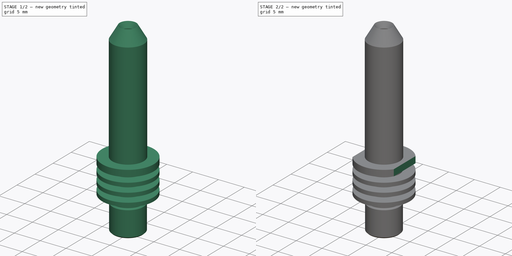
[diagram: build sequence overview — one tinted view per stage of 2, left to right]
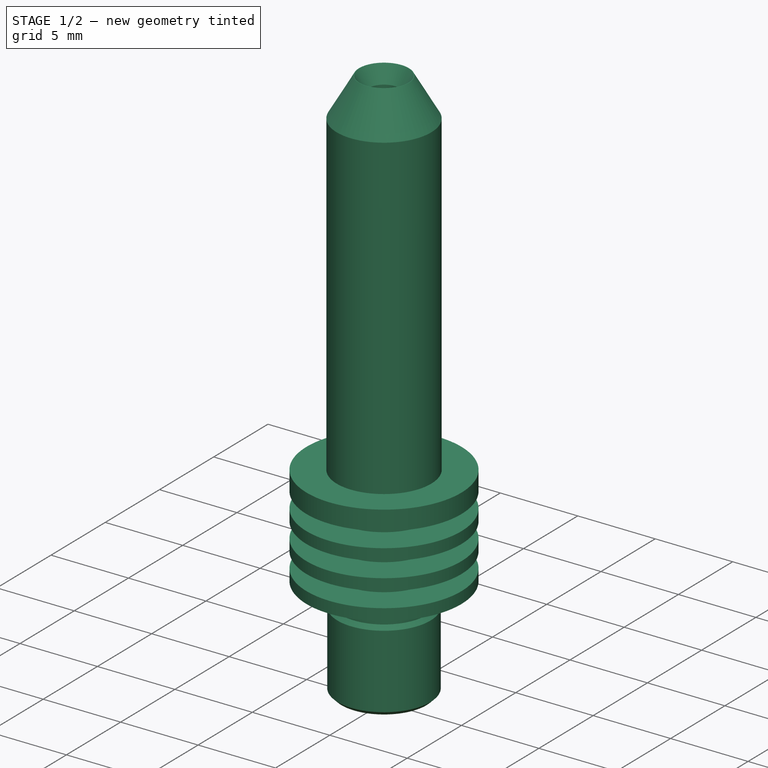
[diagram: stage 1 of 2 — iso view after this stage's code; geometry added in this stage tinted green]
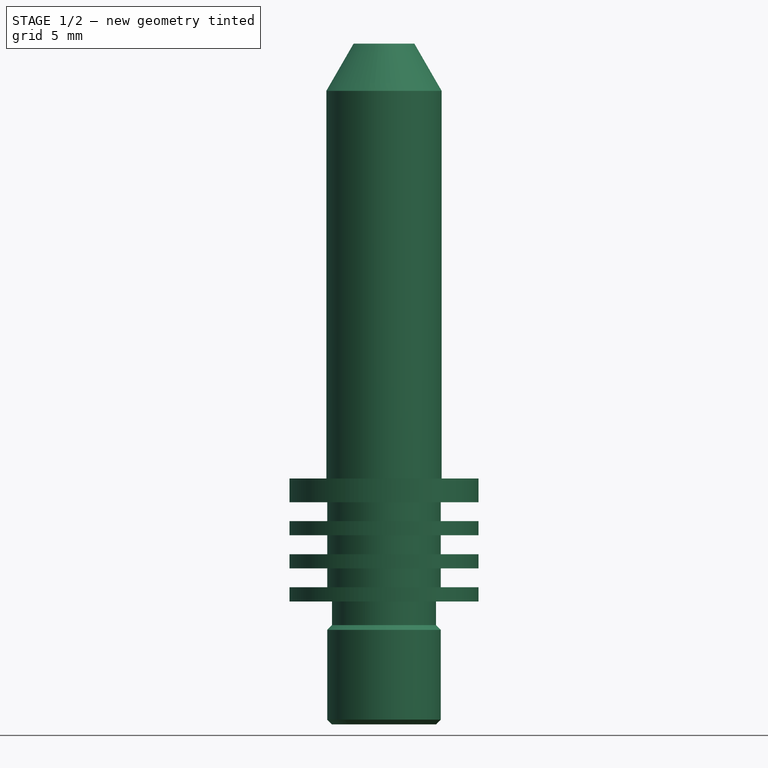
[diagram: stage 1 of 2 — front view after this stage's code; geometry added in this stage tinted green]
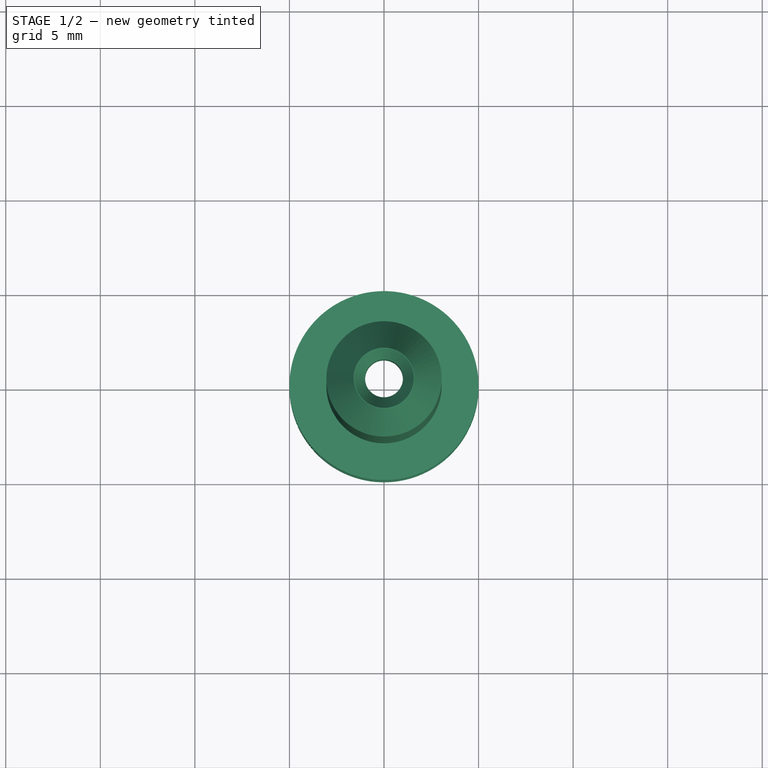
[diagram: stage 1 of 2 — top view after this stage's code; geometry added in this stage tinted green]
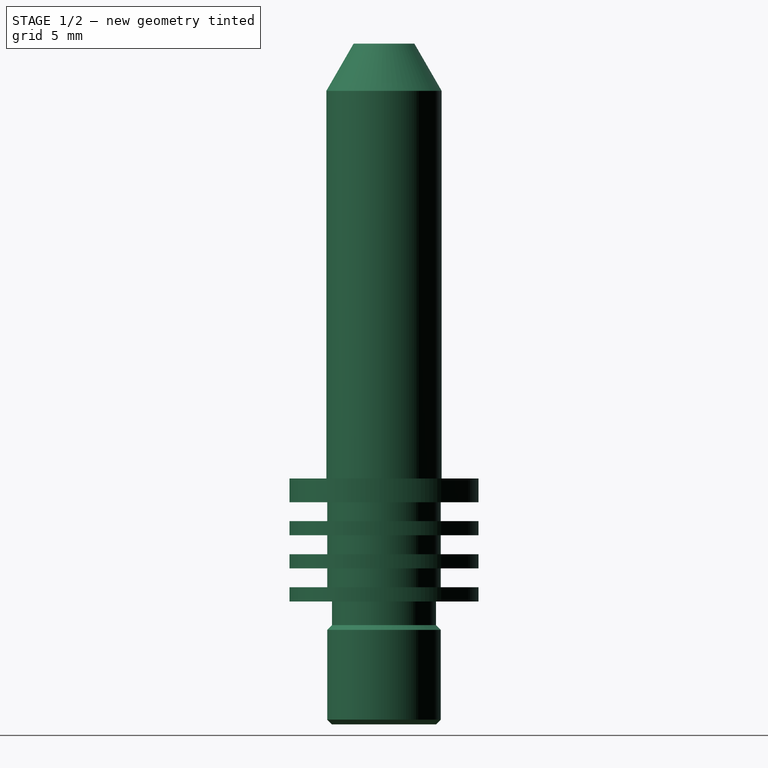
[diagram: stage 1 of 2 — right view after this stage's code; geometry added in this stage tinted green]
FCSTD DOCUMENT  (FreeCAD 0.14R3702 (Git))
Label: Hotend-main-tube
License: CC-BY 3.0
LicenseURL: http://creativecommons.org/licenses/by/3.0/
objects: Sketcher::SketchObject×2, PartDesign::Revolution×1, PartDesign::Pocket×1, Part::Feature×1
note: 7 computed .brp shape members not serialized (recipe doc carries the construction recipe); baked Part::Feature solids carry a one-line shape summary decoded from their .brp

FEATURE [Sketcher::SketchObject] Sketch  label="main-body-sketch"
  Placement = pos=(0,0,0) rot=(1,0,0;1.5708rad)
  sketch-geometry (31):
    g0: LineSegment StartX=-2 StartY=0 StartZ=0 EndX=-2 EndY=31 EndZ=0
    g1: LineSegment StartX=-2 StartY=31 StartZ=0 EndX=-1 EndY=31.5774 EndZ=0
    g2: LineSegment StartX=-1 StartY=31.5774 StartZ=0 EndX=-1 EndY=35 EndZ=0
    g3: LineSegment StartX=-1 StartY=35 StartZ=0 EndX=-1.57735 EndY=36 EndZ=0
    g4: LineSegment StartX=-3.05 StartY=33.4999 StartZ=0 EndX=-3.05 EndY=13 EndZ=0
    g5: LineSegment StartX=-3.05 StartY=13 StartZ=0 EndX=-5 EndY=13 EndZ=0
    g6: LineSegment StartX=-5 StartY=13 StartZ=0 EndX=-5 EndY=11.75 EndZ=0
    g7: LineSegment StartX=-5 StartY=11.75 StartZ=0 EndX=-3 EndY=11.75 EndZ=0
    g8: LineSegment StartX=-3 StartY=11.75 StartZ=0 EndX=-3 EndY=10.75 EndZ=0
    g9: LineSegment StartX=-3 StartY=10.75 StartZ=0 EndX=-5 EndY=10.75 EndZ=0
    g10: LineSegment StartX=-5 StartY=10.75 StartZ=0 EndX=-5 EndY=10 EndZ=0
    g11: LineSegment StartX=-5 StartY=10 StartZ=0 EndX=-3 EndY=10 EndZ=0
    g12: LineSegment StartX=-3 StartY=10 StartZ=0 EndX=-3 EndY=9 EndZ=0
    g13: LineSegment StartX=-3 StartY=9 StartZ=0 EndX=-5 EndY=9 EndZ=0
    g14: LineSegment StartX=-5 StartY=9 StartZ=0 EndX=-5 EndY=8.25 EndZ=0
    g15: LineSegment StartX=-5 StartY=8.25 StartZ=0 EndX=-3 EndY=8.25 EndZ=0
    g16: LineSegment StartX=-3 StartY=8.25 StartZ=0 EndX=-3 EndY=7.25 EndZ=0
    g17: LineSegment StartX=-3 StartY=7.25 StartZ=0 EndX=-5 EndY=7.25 EndZ=0
    g18: LineSegment StartX=-5 StartY=7.25 StartZ=0 EndX=-5 EndY=6.5 EndZ=0
    g19: LineSegment StartX=-5 StartY=6.5 StartZ=0 EndX=-2.75 EndY=6.5 EndZ=0
    g20: LineSegment StartX=-2.75 StartY=6.5 StartZ=0 EndX=-2.75 EndY=5.25 EndZ=0
    g21: LineSegment StartX=-2.75 StartY=5.25 StartZ=0 EndX=-3 EndY=5 EndZ=0
    g22: LineSegment StartX=-3 StartY=5 StartZ=0 EndX=-3 EndY=0.25 EndZ=0
    g23: LineSegment StartX=-3 StartY=0.25 StartZ=0 EndX=-2.75 EndY=0 EndZ=0
    g24: LineSegment StartX=-2.75 StartY=0 StartZ=0 EndX=-2 EndY=0 EndZ=0
    g25: LineSegment [constr] StartX=-2 StartY=31 StartZ=0 EndX=0 EndY=31 EndZ=0
    g26: LineSegment [constr] StartX=-1 StartY=35 StartZ=0 EndX=-2 EndY=35 EndZ=0
    g27: LineSegment StartX=-1.60655 StartY=36 StartZ=0 EndX=-1.57735 EndY=36 EndZ=0
    g28: LineSegment StartX=-1.60655 StartY=36 StartZ=0 EndX=-3.05 EndY=33.4999 EndZ=0
    g29: LineSegment [constr] StartX=-3 StartY=5 StartZ=0 EndX=-2 EndY=5 EndZ=0
    g30: LineSegment [constr] StartX=-3.05 StartY=33.4999 StartZ=0 EndX=-2.05 EndY=33.4999 EndZ=0
  constraints (93):
    c: Coincident(g0,g1)
    c: Coincident(g1,g2)
    c: Coincident(g2,g3)
    c: Coincident(g4,g5)
    c: Coincident(g5,g6)
    c: Coincident(g6,g7)
    c: Coincident(g7,g8)
    c: Coincident(g8,g9)
    c: Coincident(g9,g10)
    c: Coincident(g10,g11)
    c: Horizontal(g11)
    c: Coincident(g11,g12)
    c: Coincident(g12,g13)
    c: Horizontal(g13)
    c: Coincident(g13,g14)
    c: Coincident(g14,g15)
    c: Horizontal(g15)
    c: Coincident(g15,g16)
    c: Vertical(g16)
    c: Coincident(g16,g17)
    c: Horizontal(g17)
    c: Coincident(g17,g18)
    c: Vertical(g18)
    c: Coincident(g18,g19)
    c: Horizontal(g19)
    c: Coincident(g19,g20)
    c: Coincident(g20,g21)
    c: Coincident(g21,g22)
    c: Vertical(g22)
    c: Coincident(g22,g23)
    c: Coincident(g23,g24)
    c: Coincident(g24,g0)
    c: Horizontal(g24)
    c: PointOnObject(g23,g-1)
    c: Vertical(g0)
    c: DistanceX(g-1,g0) = -2
    c: DistanceX(g-1,g23) = -2.75
    c: DistanceX(g-1,g22) = -3
    c: Angle(g-1,g23) = 2.35619
    c: DistanceY(g0) = 31
    c: Horizontal(g25)
    c: Coincident(g25,g0)
    c: DistanceX(g25) = 2
    c: Angle(g25,g1) = 0.523599
    c: DistanceX(g25,g1) = -1
    c: Vertical(g2)
    c: DistanceY(g2,g3) = 1
    c: DistanceY(g-1,g3) = 36
    c: Horizontal(g26)
    c: Coincident(g26,g2)
    c: DistanceX(g26) = -1
    c: Angle(g3,g26) = 1.0472
    c: Horizontal(g27)
    c: Coincident(g27,g3)
    c: DistanceX(g27) = 0.0292
    c: Coincident(g27,g28)
    c: Coincident(g28,g4)
    c: Vertical(g4)
    c: DistanceX(g-1,g4) = -3.05
    c: Horizontal(g5)
    c: Vertical(g6)
    c: Horizontal(g7)
    c: Vertical(g8)
    c: Horizontal(g9)
    c: Vertical(g10)
    c: Vertical(g12)
    c: Vertical(g14)
    c: Vertical(g20)
    c: DistanceY(g22) = -4.75
    c: Horizontal(g29)
    c: Coincident(g29,g21)
    c: DistanceX(g29) = 1
    c: Angle(g29,g21) = 0.785398
    c: DistanceY(g21,g20) = 0.25
    c: DistanceY(g20) = -1.25
    c: DistanceX(g-1,g18) = -5
    c: DistanceX(g-1,g16) = -3
    c: DistanceY(g18) = -0.75
    c: Equal(g18,g14)
    c: PointOnObject(g14,g18)
    c: PointOnObject(g10,g18)
    c: Equal(g14,g10)
    c: DistanceY(g16) = -1
    c: PointOnObject(g12,g16)
    c: Equal(g16,g12)
    c: PointOnObject(g11,g8)
    c: Equal(g8,g12)
    c: PointOnObject(g6,g10)
    c: DistanceY(g4,g7) = -1.25
    c: Horizontal(g30)
    c: Coincident(g30,g4)
    c: DistanceX(g30) = 1
    c: Angle(g30,g28) = 1.0472
FEATURE [PartDesign::Revolution] Revolution  label="main-body"
  Angle = 360
  Axis = (0,0,1)
  Base = (0,0,0)
  Placement = pos=(0,0,0) rot=(1,0,0;1.5708rad)
  ReferenceAxis = -> Sketch [V_Axis]
  Sketch = -> Sketch
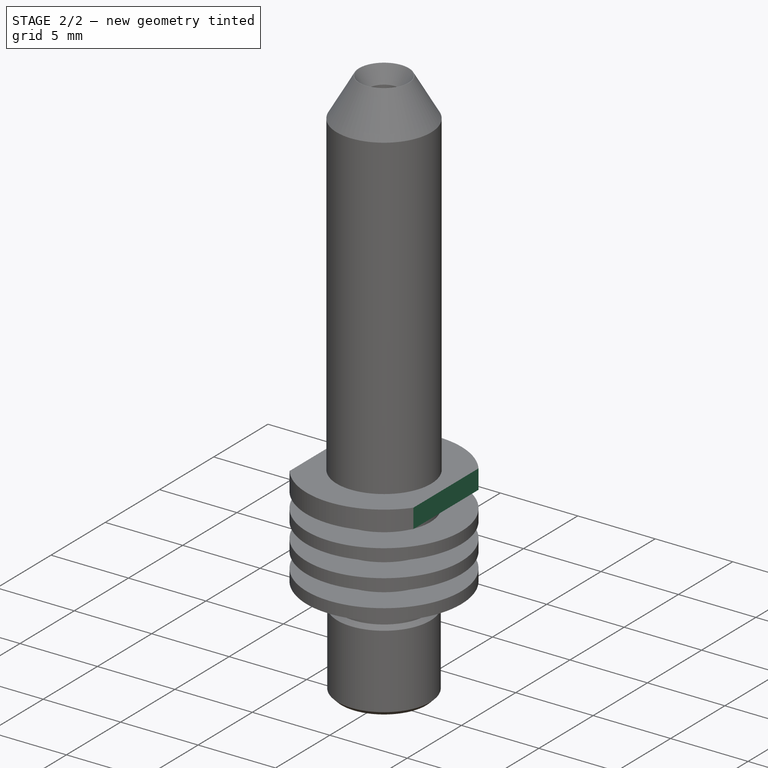
[diagram: stage 2 of 2 — iso view after this stage's code; geometry added in this stage tinted green]
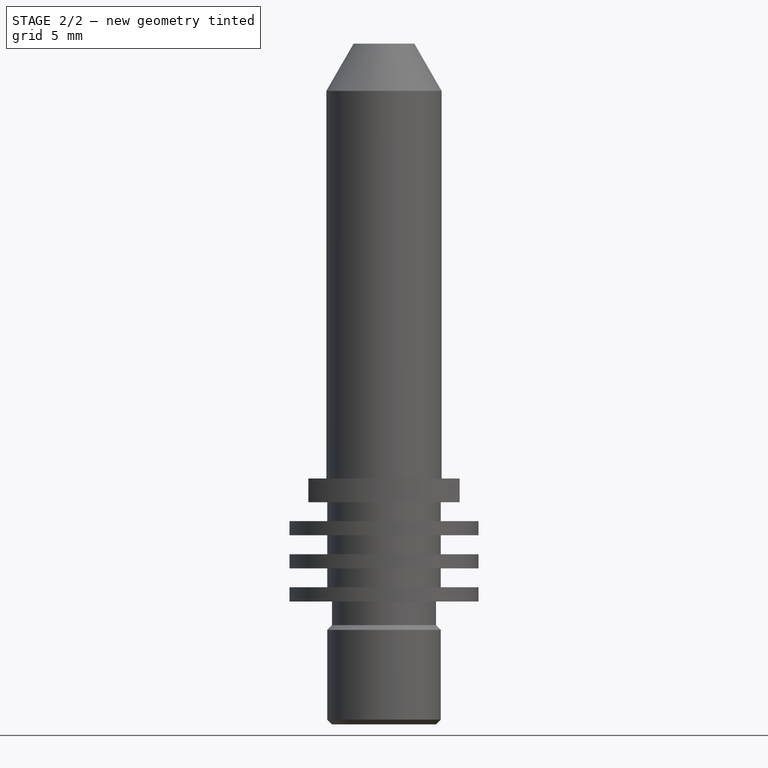
[diagram: stage 2 of 2 — front view after this stage's code; geometry added in this stage tinted green]
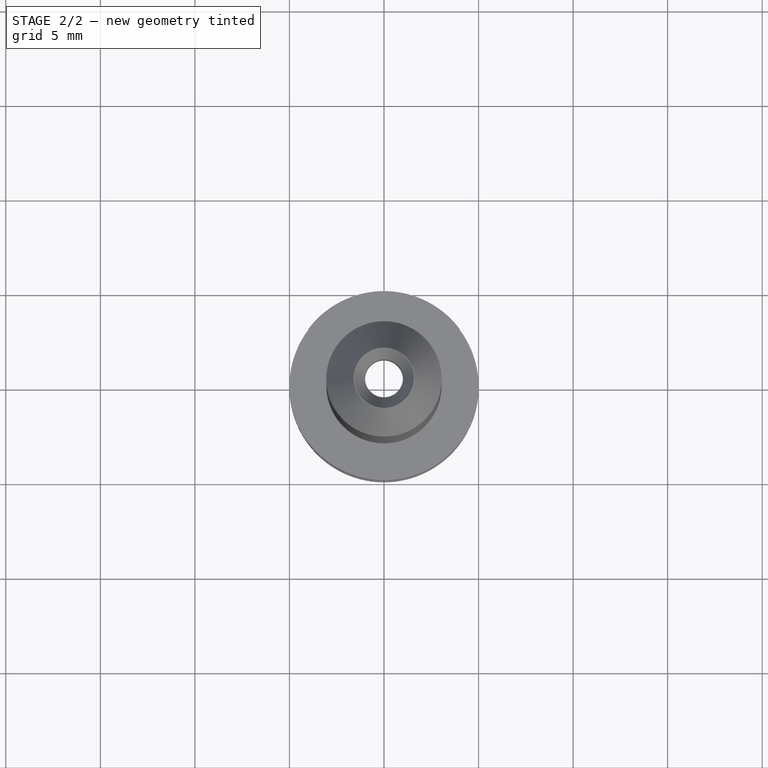
[diagram: stage 2 of 2 — top view after this stage's code; geometry added in this stage tinted green]
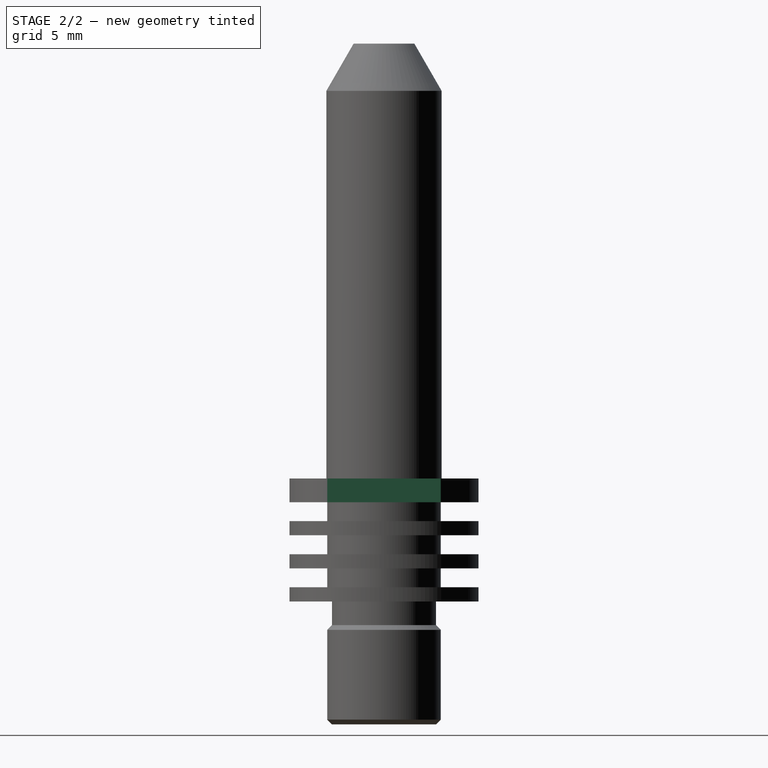
[diagram: stage 2 of 2 — right view after this stage's code; geometry added in this stage tinted green]
FEATURE [Sketcher::SketchObject] Sketch001  label="cutout-1-sketch"
  Placement = pos=(0,0,13) rot=(0,0,1;3.14159rad)
  Support = -> Revolution [Face3]
  sketch-geometry (8):
    g0: LineSegment StartX=-7 StartY=4.5 StartZ=0 EndX=-4 EndY=4.5 EndZ=0
    g1: LineSegment StartX=-4 StartY=4.5 StartZ=0 EndX=-4 EndY=-4.5 EndZ=0
    g2: LineSegment StartX=-4 StartY=-4.5 StartZ=0 EndX=-7 EndY=-4.5 EndZ=0
    g3: LineSegment StartX=-7 StartY=-4.5 StartZ=0 EndX=-7 EndY=4.5 EndZ=0
    g4: LineSegment StartX=4 StartY=4.5 StartZ=0 EndX=7 EndY=4.5 EndZ=0
    g5: LineSegment StartX=7 StartY=4.5 StartZ=0 EndX=7 EndY=-4.5 EndZ=0
    g6: LineSegment StartX=7 StartY=-4.5 StartZ=0 EndX=4 EndY=-4.5 EndZ=0
    g7: LineSegment StartX=4 StartY=-4.5 StartZ=0 EndX=4 EndY=4.5 EndZ=0
  constraints (22):
    c: Coincident(g0,g1)
    c: Coincident(g1,g2)
    c: Coincident(g2,g3)
    c: Coincident(g3,g0)
    c: Horizontal(g0)
    c: Horizontal(g2)
    c: Vertical(g3)
    c: Coincident(g4,g5)
    c: Coincident(g5,g6)
    c: Coincident(g6,g7)
    c: Coincident(g7,g4)
    c: Horizontal(g4)
    c: Horizontal(g6)
    c: Vertical(g5)
    c: Vertical(g7)
    c: Symmetric(g0,g1,g-1)
    c: Symmetric(g0,g4,g-2)
    c: DistanceX(g0,g4) = 8
    c: DistanceX(g0) = 3
    c: Equal(g0,g4)
    c: Symmetric(g1,g6,g-2)
    c: DistanceY(g3) = 9
FEATURE [PartDesign::Pocket] Pocket  label="cutout-1"
  Length = 1.3
  Placement = pos=(0,0,0) rot=(1,0,0;1.5708rad)
  Sketch = -> Sketch001
  Type = 0
FEATURE [Part::Feature] Pocket001  label="Hotend-main-tube-final"
  Placement = pos=(0,0,0) rot=(1,0,0;1.5708rad)
  shape: bbox 10 x 10 x 36 mm, 30 faces (baked)
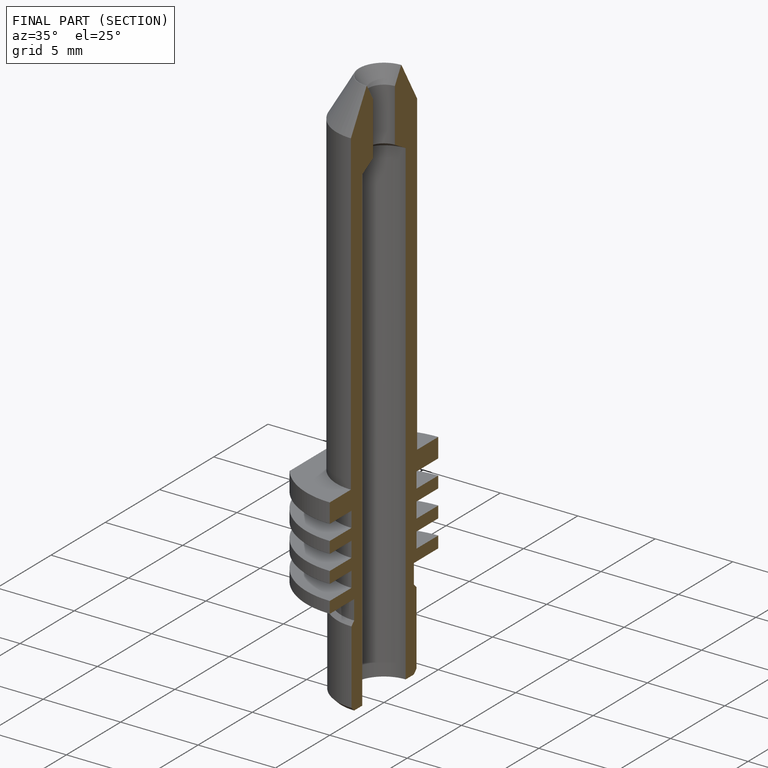
[diagram: finished part — half-section view (interior)]
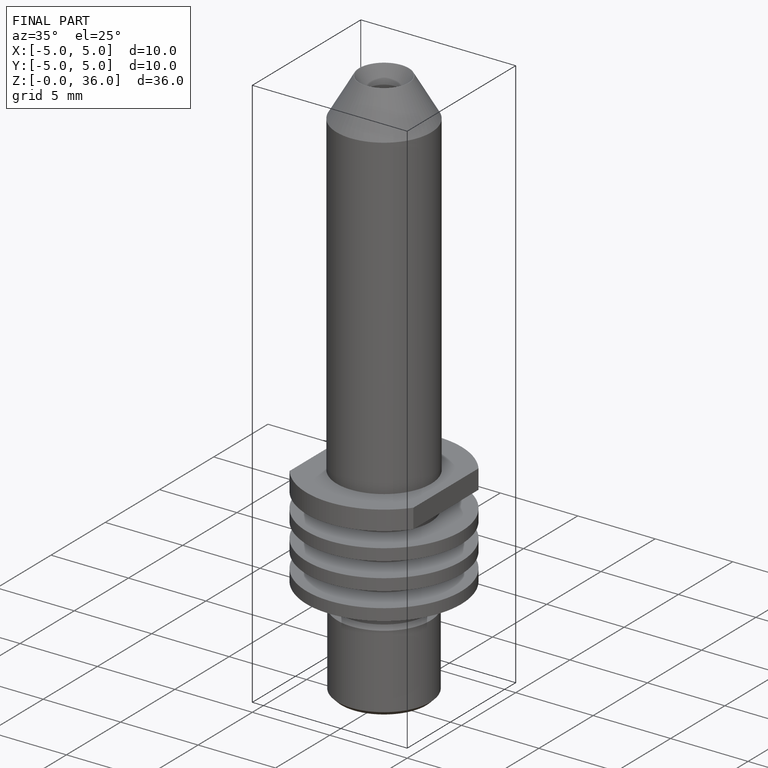
[diagram: finished part — iso view with bounding-box wireframe]
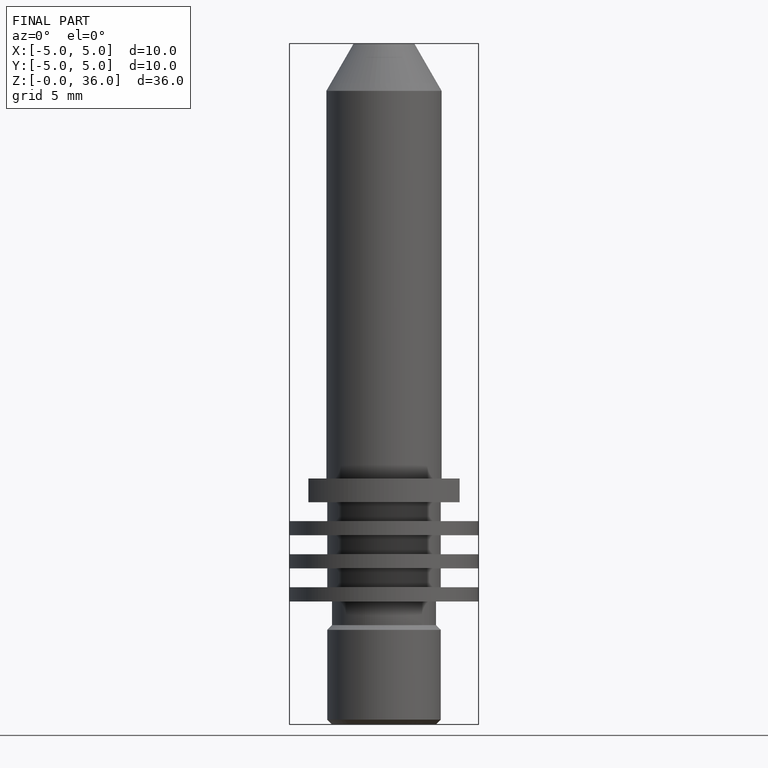
[diagram: finished part — front view with bounding-box wireframe]
